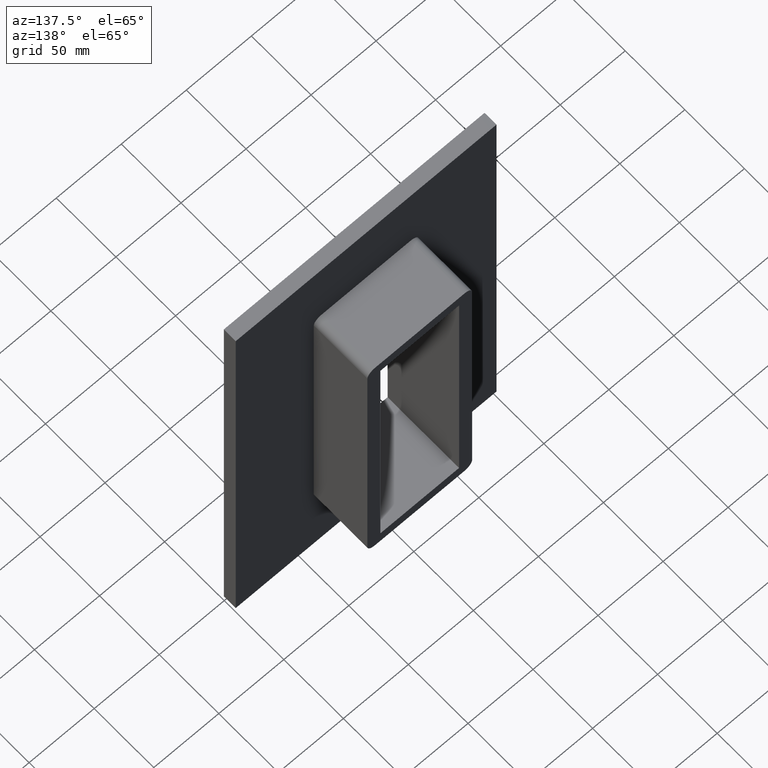
[diagram: clean part render]
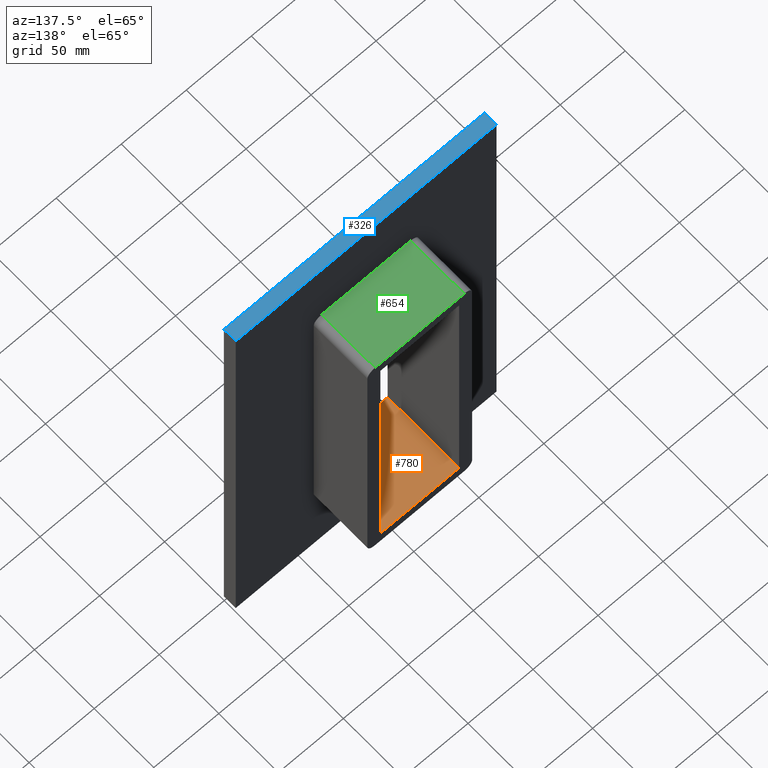
[diagram: same view with three faces highlighted in distinct colors, each labeled with its STEP entity id]
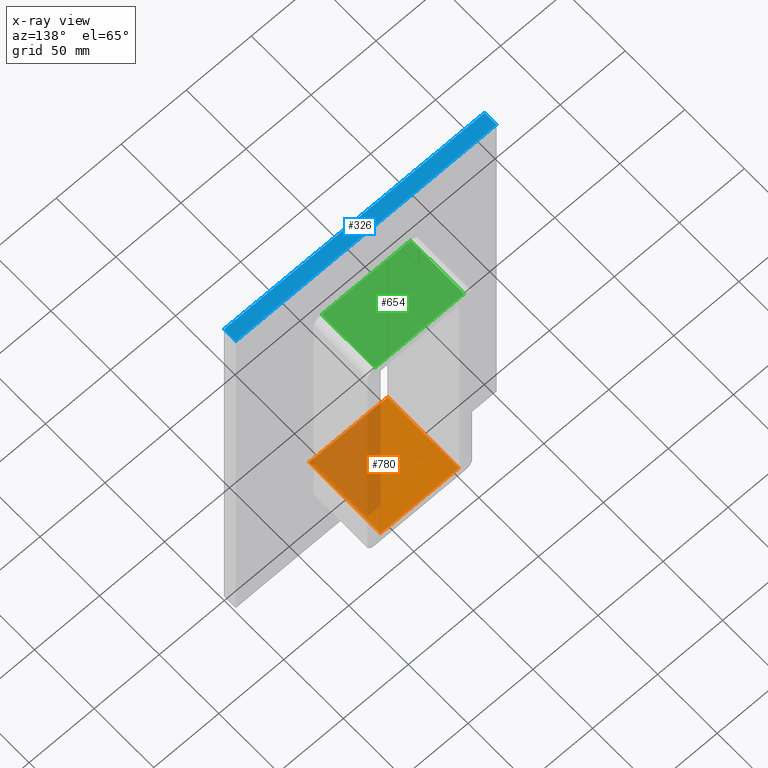
[diagram: x-ray of the same camera — body ghosted, the three highlighted faces saturated]
A machine part, auxiliary view with three faces highlighted in distinct colors.
The next image is the same camera in x-ray (body ghosted, the three faces saturated) — at least one of them is partly hidden behind the body in this view.
Their STEP definitions:

[orange] entity #780 — the highlighted planar face has unit normal (0, 0, -1).
#371=CARTESIAN_POINT('',(-30.250000000000004,-5.0,-108.99999999999999));
#372=VERTEX_POINT('',#371);
#379=CARTESIAN_POINT('',(-30.250000000000004,55.0,-108.99999999999999));
#380=VERTEX_POINT('',#379);
#381=CARTESIAN_POINT('',(-30.250000000000004,-5.0,-108.99999999999999));
#382=DIRECTION('',(0.0,1.0,0.0));
#383=VECTOR('',#382,60.0);
#384=LINE('',#381,#383);
#385=EDGE_CURVE('',#372,#380,#384,.T.);
#712=CARTESIAN_POINT('',(30.250000000000021,55.0,-108.99999999999999));
#713=VERTEX_POINT('',#712);
#720=CARTESIAN_POINT('',(30.250000000000021,-5.0,-108.99999999999999));
#721=VERTEX_POINT('',#720);
#722=CARTESIAN_POINT('',(30.250000000000021,55.0,-108.99999999999999));
#723=DIRECTION('',(0.0,-1.0,0.0));
#724=VECTOR('',#723,60.0);
#725=LINE('',#722,#724);
#726=EDGE_CURVE('',#713,#721,#725,.T.);
#759=CARTESIAN_POINT('',(30.250000000000021,0.0,-108.99999999999999));
#760=DIRECTION('',(0.0,0.0,-1.0));
#761=DIRECTION('',(-1.0,0.0,0.0));
#762=AXIS2_PLACEMENT_3D('',#759,#760,#761);
#763=PLANE('',#762);
#764=ORIENTED_EDGE('',*,*,#385,.F.);
#765=CARTESIAN_POINT('',(30.250000000000021,-5.0,-108.99999999999999));
#766=DIRECTION('',(-1.0,0.0,0.0));
#767=VECTOR('',#766,60.500000000000028);
#768=LINE('',#765,#767);
#769=EDGE_CURVE('',#721,#372,#768,.T.);
#770=ORIENTED_EDGE('',*,*,#769,.F.);
#771=ORIENTED_EDGE('',*,*,#726,.F.);
#772=CARTESIAN_POINT('',(-30.250000000000004,55.0,-108.99999999999999));
#773=DIRECTION('',(1.0,0.0,0.0));
#774=VECTOR('',#773,60.500000000000028);
#775=LINE('',#772,#774);
#776=EDGE_CURVE('',#380,#713,#775,.T.);
#777=ORIENTED_EDGE('',*,*,#776,.F.);
#778=EDGE_LOOP('',(#764,#770,#771,#777));
#779=FACE_OUTER_BOUND('',#778,.T.);
#780=ADVANCED_FACE('',(#779),#763,.F.);

[blue] entity #326 — the highlighted planar face has unit normal (0, 0, 1).
#83=CARTESIAN_POINT('',(-100.25000000000003,10.0,179.00000000000003));
#84=VERTEX_POINT('',#83);
#91=CARTESIAN_POINT('',(100.25000000000003,10.0,179.00000000000003));
#92=VERTEX_POINT('',#91);
#93=CARTESIAN_POINT('',(-100.25000000000004,10.0,179.0));
#94=DIRECTION('',(1.0,0.0,0.0));
#95=VECTOR('',#94,200.50000000000006);
#96=LINE('',#93,#95);
#97=EDGE_CURVE('',#84,#92,#96,.T.);
#193=CARTESIAN_POINT('',(100.25000000000003,0.0,179.0));
#194=VERTEX_POINT('',#193);
#201=CARTESIAN_POINT('',(-100.25000000000004,0.0,179.0));
#202=VERTEX_POINT('',#201);
#203=CARTESIAN_POINT('',(-100.25000000000004,0.0,179.0));
#204=DIRECTION('',(1.0,0.0,0.0));
#205=VECTOR('',#204,200.50000000000006);
#206=LINE('',#203,#205);
#207=EDGE_CURVE('',#202,#194,#206,.T.);
#301=CARTESIAN_POINT('',(100.25000000000003,0.0,179.0));
#302=DIRECTION('',(0.0,1.0,0.0));
#303=VECTOR('',#302,10.0);
#304=LINE('',#301,#303);
#305=EDGE_CURVE('',#194,#92,#304,.T.);
#310=CARTESIAN_POINT('',(-100.25000000000004,0.0,179.0));
#311=DIRECTION('',(0.0,0.0,1.0));
#312=DIRECTION('',(1.0,0.0,0.0));
#313=AXIS2_PLACEMENT_3D('',#310,#311,#312);
#314=PLANE('',#313);
#315=ORIENTED_EDGE('',*,*,#207,.T.);
#316=ORIENTED_EDGE('',*,*,#305,.T.);
#317=ORIENTED_EDGE('',*,*,#97,.F.);
#318=CARTESIAN_POINT('',(-100.25000000000004,0.0,179.0));
#319=DIRECTION('',(0.0,1.0,0.0));
#320=VECTOR('',#319,10.0);
#321=LINE('',#318,#320);
#322=EDGE_CURVE('',#202,#84,#321,.T.);
#323=ORIENTED_EDGE('',*,*,#322,.F.);
#324=EDGE_LOOP('',(#315,#316,#317,#323));
#325=FACE_OUTER_BOUND('',#324,.T.);
#326=ADVANCED_FACE('',(#325),#314,.T.);

[green] entity #654 — the highlighted planar face has unit normal (0, 0, 1).
#107=CARTESIAN_POINT('',(34.250000000000043,10.0,118.99999999999999));
#108=VERTEX_POINT('',#107);
#118=CARTESIAN_POINT('',(-34.250000000000043,10.0,118.99999999999999));
#119=VERTEX_POINT('',#118);
#120=CARTESIAN_POINT('',(-34.250000000000043,10.0,118.99999999999999));
#121=DIRECTION('',(1.0,0.0,0.0));
#122=VECTOR('',#121,68.500000000000085);
#123=LINE('',#120,#122);
#124=EDGE_CURVE('',#119,#108,#123,.T.);
#563=CARTESIAN_POINT('',(-34.250000000000043,55.0,118.99999999999999));
#564=VERTEX_POINT('',#563);
#565=CARTESIAN_POINT('',(-34.250000000000043,10.0,118.99999999999999));
#566=DIRECTION('',(0.0,1.0,0.0));
#567=VECTOR('',#566,45.0);
#568=LINE('',#565,#567);
#569=EDGE_CURVE('',#119,#564,#568,.T.);
#631=CARTESIAN_POINT('',(-34.250000000000043,0.0,118.99999999999999));
#632=DIRECTION('',(0.0,0.0,1.0));
#633=DIRECTION('',(1.0,0.0,0.0));
#634=AXIS2_PLACEMENT_3D('',#631,#632,#633);
#635=PLANE('',#634);
#636=ORIENTED_EDGE('',*,*,#124,.T.);
#637=CARTESIAN_POINT('',(34.250000000000043,55.0,118.99999999999999));
#638=VERTEX_POINT('',#637);
#639=CARTESIAN_POINT('',(34.250000000000043,10.0,118.99999999999999));
#640=DIRECTION('',(0.0,1.0,0.0));
#641=VECTOR('',#640,45.0);
#642=LINE('',#639,#641);
#643=EDGE_CURVE('',#108,#638,#642,.T.);
#644=ORIENTED_EDGE('',*,*,#643,.T.);
#645=CARTESIAN_POINT('',(-34.250000000000043,55.0,118.99999999999999));
#646=DIRECTION('',(1.0,0.0,0.0));
#647=VECTOR('',#646,68.500000000000085);
#648=LINE('',#645,#647);
#649=EDGE_CURVE('',#564,#638,#648,.T.);
#650=ORIENTED_EDGE('',*,*,#649,.F.);
#651=ORIENTED_EDGE('',*,*,#569,.F.);
#652=EDGE_LOOP('',(#636,#644,#650,#651));
#653=FACE_OUTER_BOUND('',#652,.T.);
#654=ADVANCED_FACE('',(#653),#635,.T.);